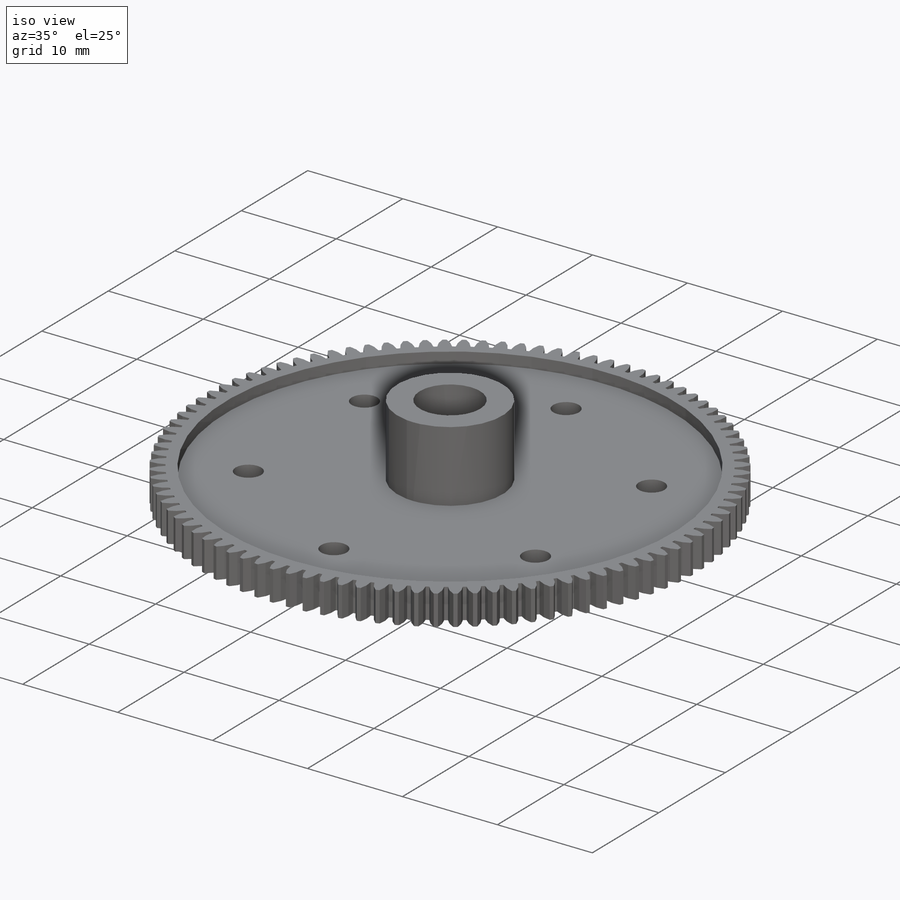
[diagram: iso view]
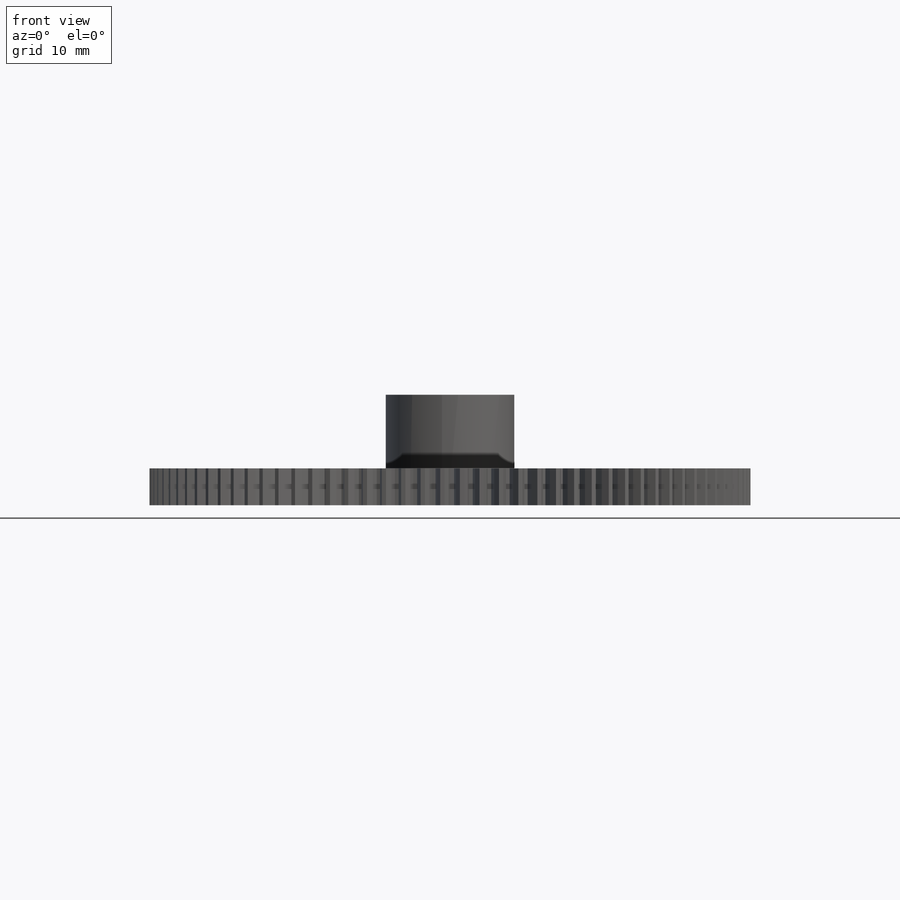
[diagram: front view]
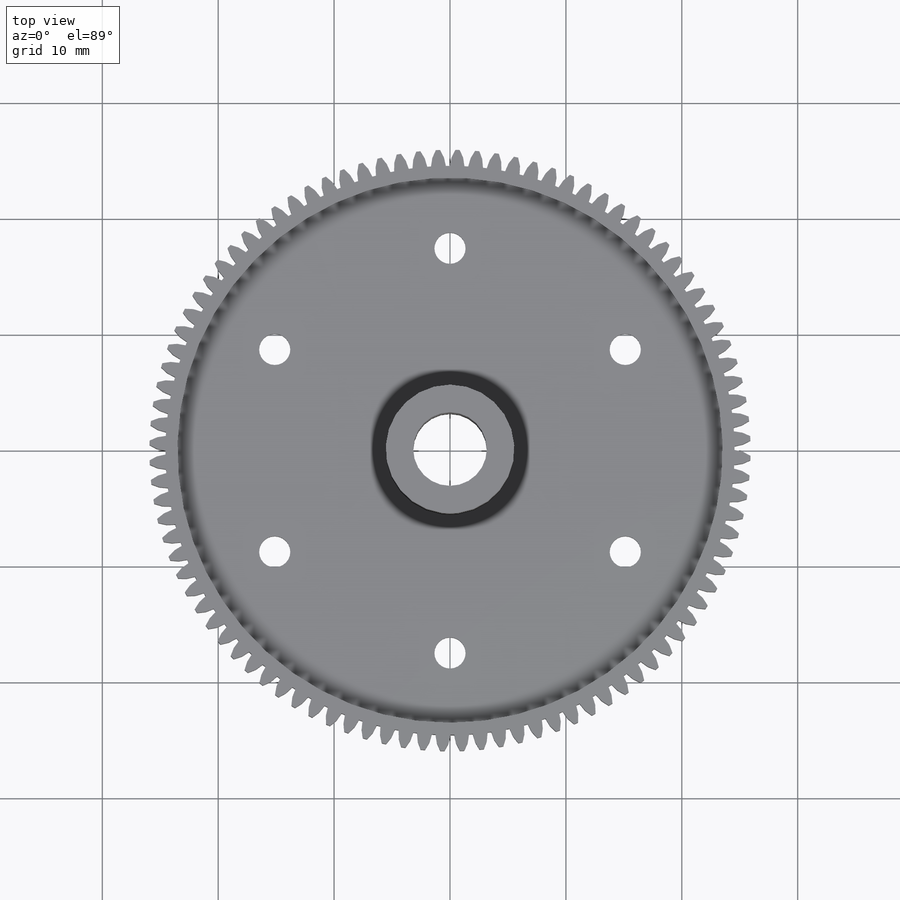
[diagram: top view]
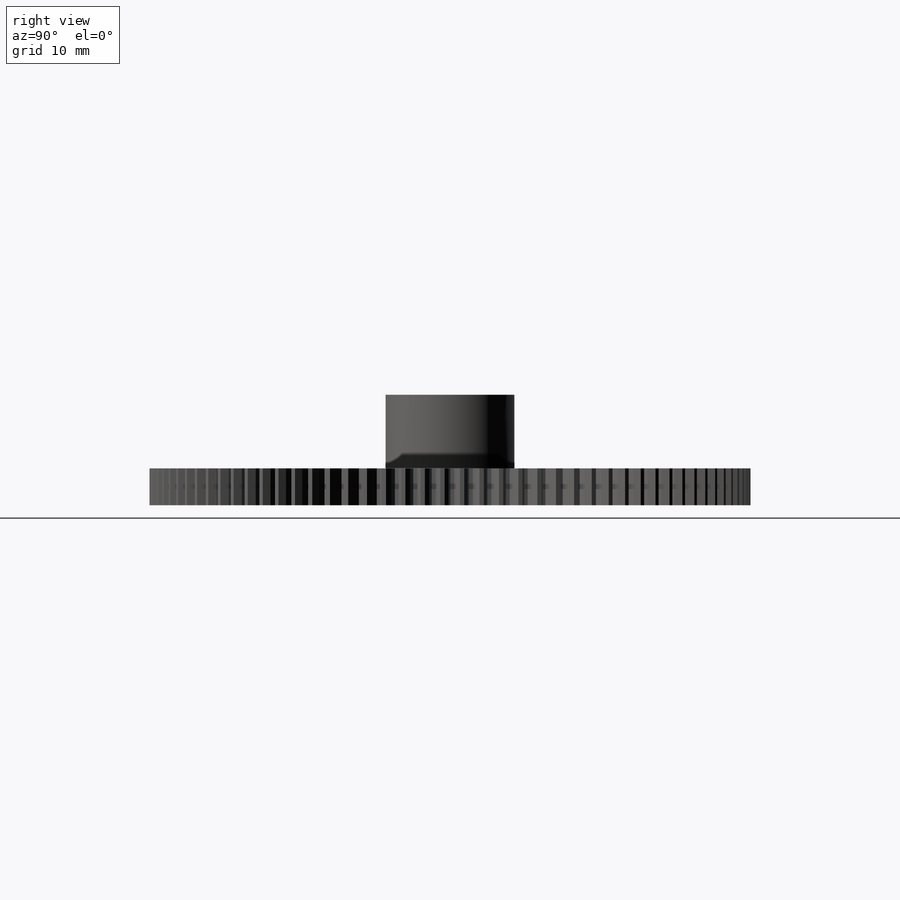
[diagram: right view]
SOLIDWORKS PART (.sldprt)
format: sldprt  version: not decoded by parser v0  size: 579,584 bytes
history: native  units: mm
features: sketch x7, cut_extrude x4, extrude x2, pattern_circular x2, material x1 (+12 scaffold rows collapsed)
feature tree (28):
  scaffold x12  (default folders/planes/origin — collapsed)
  material  "Material <not specified>"
  sketch  "Sketch1"  dims[D1=51.8668mm]
  extrude  "Boss-Extrude1"  Depth=3.175mm
  sketch  "Sketch2"  dims[D1=11.0998mm]
  extrude  "Boss-Extrude2"  Depth=6.35mm
  sketch  "Sketch3"  dims[D1=6.35mm]
  cut_extrude  "Cut-Extrude1"  [1 undecoded]
  sketch  "Sketch4"  dims[D1=47.0408mm]
  cut_extrude  "Cut-Extrude2"  Depth=1.143mm
  sketch  "Sketch5"  dims[D1=~3.213833mm]
  cut_extrude  "Cut-Extrude3"  [1 undecoded]
  pattern_circular  "CirPattern1"  Count=6 Angle=360deg
  sketch  "Sketch6"  dims[c1.D1=~0.374244mm c2.D1=120.0deg c2.D2=~0.529167mm c3.D2=120.0deg c3.D3=~1.050188mm c4.D3=80.0deg c4.D4=~0.33697mm c5.D4=80.0deg c5.D5=~0.529167mm c5.D1=~1.058333mm c6.D1=115.0deg c6.D2=~1.058333mm c7.D2=115.0deg c7.D3=0.5334mm c8.D3=75.0deg c8.D4=~0.541629mm c9.D4=75.0deg c9.D1=~0.335464mm c10.D1=70.0deg c10.D2=~0.332609mm c11.D2=70.0deg c11.D3=~0.816703mm c12.D2=~1.66243mm c13.D2=70.0deg c13.D3=~0.784317mm c14.D3=165.0deg c14.D4=~0.793202mm c15.D4=165.0deg]
  cut_extrude  "Cut-Extrude4"  [1 undecoded]
  pattern_circular  "CirPattern2"  Count=96 Angle=360deg
  sketch  "Pitch Dia"  dims[D1=50.8mm]
decode coverage: 12 of 15 modeling features carry decoded parameters
note: ~ marks probable driven/reference dimensions
note: 3 parameter values undecoded
summary: no parameter record found for 3 features
note: suppression state not decoded; provenance and decode notes live in map.json
